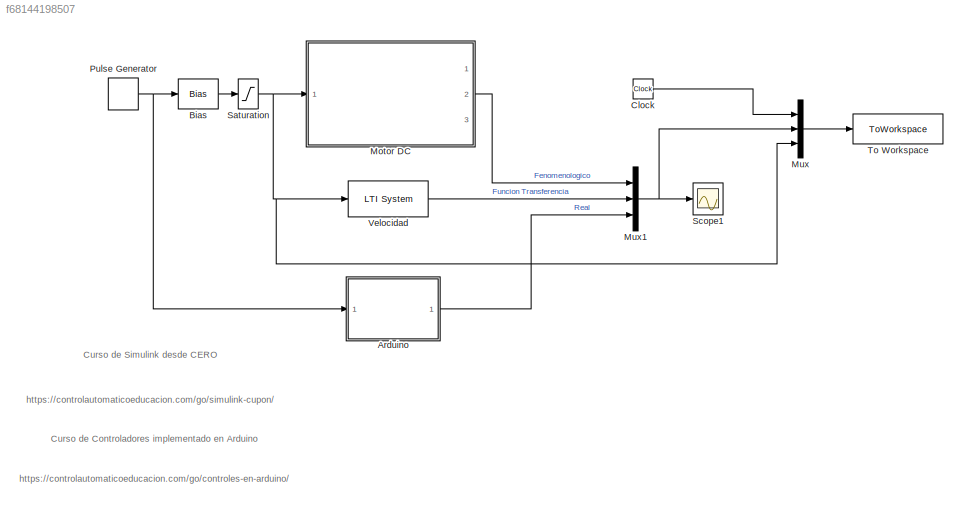
MODEL slx_f68144198507
KIND model
CONFIG AbsTol = auto
CONFIG EnableMultiTasking = off
CONFIG FixedStep = auto
CONFIG MaxStep = auto
CONFIG MinStep = auto
CONFIG RelTol = 1e-3
CONFIG SampleTimeConstraint = Unconstrained
CONFIG SolverName = VariableStepAuto
CONFIG StartTime = 0.0
CONFIG StopTime = 9
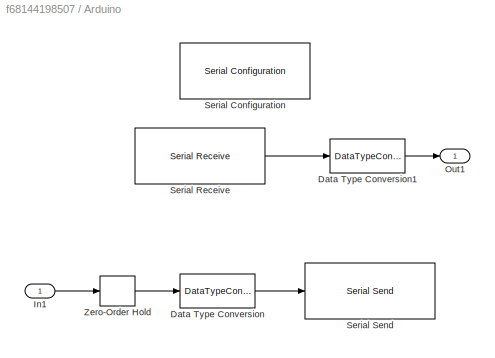
BLOCK [SubSystem] Arduino
  Ports = [1, 1]
  RequestExecContextInheritance = off
BLOCK [DataTypeConversion] Arduino/Data Type Conversion
  OutDataTypeStr = single
  RndMeth = Floor
  SaturateOnIntegerOverflow = off
BLOCK [DataTypeConversion] Arduino/Data Type Conversion1
  OutDataTypeStr = double
  RndMeth = Floor
  SaturateOnIntegerOverflow = off
BLOCK [Inport] Arduino/In1
BLOCK [Outport] Arduino/Out1
BLOCK [Reference] Arduino/Serial Configuration  REF=instrumentseriallib/Serial Configuration
  Ports = []
  Priority = -200000
  SourceBlock = instrumentseriallib/Serial Configuration
  SourceProductBaseCode = IC
  SourceType = matlabshared.seriallib.internal.system.SerialConfiguration
BLOCK [Reference] Arduino/Serial Receive  REF=instrumentseriallib/Serial Receive
  Ports = [0, 1]
  Priority = 1
  SourceBlock = instrumentseriallib/Serial Receive
  SourceProductBaseCode = IC
  SourceType = matlabshared.seriallib.internal.system.SerialReceive
BLOCK [Reference] Arduino/Serial Send  REF=instrumentseriallib/Serial Send
  Ports = [1]
  Priority = 1
  SourceBlock = instrumentseriallib/Serial Send
  SourceProductBaseCode = IC
  SourceType = matlabshared.seriallib.internal.system.SerialSend
BLOCK [ZeroOrderHold] Arduino/Zero-Order Hold
  SampleTime = 0.05
BLOCK [Bias] Bias
  Bias = -5+Vm
  SaturateOnIntegerOverflow = off
BLOCK [Clock] Clock
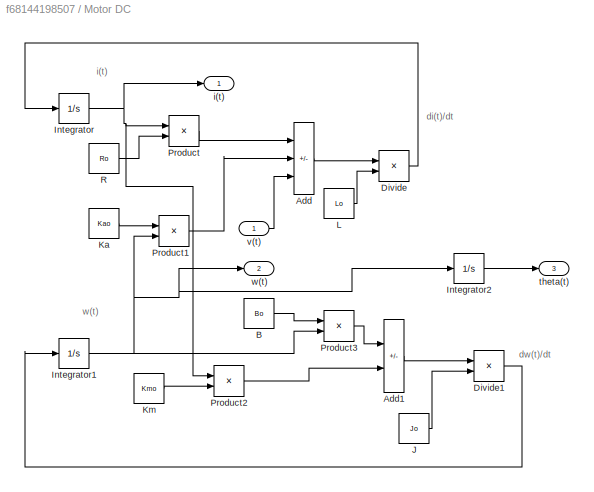
BLOCK [SubSystem] Motor DC
  Ports = [1, 3]
  RequestExecContextInheritance = off
BLOCK [Sum] Motor DC/Add
  IconShape = rectangular
  Inputs = --+
  Ports = [3, 1]
BLOCK [Sum] Motor DC/Add1
  IconShape = rectangular
  Inputs = -+
  Ports = [2, 1]
BLOCK [Constant] Motor DC/B
  Value = Bo
BLOCK [Product] Motor DC/Divide
  Inputs = */
  Ports = [2, 1]
BLOCK [Product] Motor DC/Divide1
  Inputs = */
  Ports = [2, 1]
BLOCK [Integrator] Motor DC/Integrator
  Ports = [1, 1]
BLOCK [Integrator] Motor DC/Integrator1
  Ports = [1, 1]
BLOCK [Integrator] Motor DC/Integrator2
  Ports = [1, 1]
BLOCK [Constant] Motor DC/J
  Value = Jo
BLOCK [Constant] Motor DC/Ka
  Value = Kao
BLOCK [Constant] Motor DC/Km
  Value = Kmo
BLOCK [Constant] Motor DC/L
  Value = Lo
BLOCK [Product] Motor DC/Product
  Ports = [2, 1]
BLOCK [Product] Motor DC/Product1
  Ports = [2, 1]
BLOCK [Product] Motor DC/Product2
  Ports = [2, 1]
BLOCK [Product] Motor DC/Product3
  Ports = [2, 1]
BLOCK [Constant] Motor DC/R
  Value = Ro
BLOCK [Outport] Motor DC/i(t)
  VectorParamsAs1DForOutWhenUnconnected = off
BLOCK [Outport] Motor DC/theta(t)
  Port = 3
  VectorParamsAs1DForOutWhenUnconnected = off
BLOCK [Inport] Motor DC/v(t)
BLOCK [Outport] Motor DC/w(t)
  Port = 2
  VectorParamsAs1DForOutWhenUnconnected = off
BLOCK [Mux] Mux
  DisplayOption = bar
  Inputs = 3
  Ports = [3, 1]
BLOCK [Mux] Mux1
  DisplayOption = bar
  Inputs = 3
  Ports = [3, 1]
BLOCK [DiscretePulseGenerator] Pulse Generator
  Amplitude = 5
  Period = 4
  PhaseDelay = 2
  Ports = [0, 1]
  PulseType = Time based
  PulseWidth = 50
BLOCK [Saturate] Saturation
  LowerLimit = 0
  UpperLimit = 5
BLOCK [Scope] Scope1
  Floating = off
  NumInputPorts = 1
  Ports = [1]
  ScopeSpecificationString = Simulink.scopes.TimeScopeBlockCfg('CurrentConfiguration', extmgr.ConfigurationSet(extmgr.Configuration('Core','General UI',true),extmgr.Configuration('Core','Source UI',true),extmgr.Configuration('Sources','WiredSimulink',true,'DataLoggingVariableName','ScopeData1'),extmgr.Configuration('Visuals','Time Domain',true,'SerializedDisplays',{struct('MinYLimReal','-1.80051','MaxYLimReal','16.20341','YLa...<+1822ch>
BLOCK [ToWorkspace] To Workspace
  FixptAsFi = on
  MaxDataPoints = inf
  Ports = [1]
  SampleTime = 0.05
  VariableName = data_val
BLOCK [Reference] Velocidad  REF=cstblocks/LTI System
  Ports = [1, 1]
  SourceBlock = cstblocks/LTI System
  SourceProductBaseCode = CT
  SourceType = LTI Block
ANNOTATION (root): https://controlautomaticoeducacion.com/go/controles-en-arduino/
ANNOTATION (root): https://controlautomaticoeducacion.com/go/simulink-cupon/
ANNOTATION (root): Curso de Controladores implementado en Arduino
ANNOTATION (root): Curso de Simulink desde CERO
ANNOTATION Motor DC: di(t)/dt
ANNOTATION Motor DC: dw(t)/dt
ANNOTATION Motor DC: i(t)
ANNOTATION Motor DC: w(t)
LINE Arduino/Data Type Conversion1:1 -> Arduino/Out1:1
LINE Arduino/Data Type Conversion:1 -> Arduino/Serial Send:1
LINE Arduino/In1:1 -> Arduino/Zero-Order Hold:1
LINE Arduino/Serial Receive:1 -> Arduino/Data Type Conversion1:1
LINE Arduino/Zero-Order Hold:1 -> Arduino/Data Type Conversion:1
LINE Arduino:1 -> Mux1:3
LINE Bias:1 -> Saturation:1
LINE Clock:1 -> Mux:1
LINE Motor DC/Add1:1 -> Motor DC/Divide1:1
LINE Motor DC/Add:1 -> Motor DC/Divide:1
LINE Motor DC/B:1 -> Motor DC/Product3:1
LINE Motor DC/Divide1:1 -> Motor DC/Integrator1:1
LINE Motor DC/Divide:1 -> Motor DC/Integrator:1
NET Motor DC/Integrator1:1 -> Motor DC/Integrator2:1, Motor DC/Product1:2, Motor DC/Product3:2, Motor DC/w(t):1
LINE Motor DC/Integrator2:1 -> Motor DC/theta(t):1
NET Motor DC/Integrator:1 -> Motor DC/Product2:1, Motor DC/Product:1, Motor DC/i(t):1
LINE Motor DC/J:1 -> Motor DC/Divide1:2
LINE Motor DC/Ka:1 -> Motor DC/Product1:1
LINE Motor DC/Km:1 -> Motor DC/Product2:2
LINE Motor DC/L:1 -> Motor DC/Divide:2
LINE Motor DC/Product1:1 -> Motor DC/Add:2
LINE Motor DC/Product2:1 -> Motor DC/Add1:2
LINE Motor DC/Product3:1 -> Motor DC/Add1:1
LINE Motor DC/Product:1 -> Motor DC/Add:1
LINE Motor DC/R:1 -> Motor DC/Product:2
LINE Motor DC/v(t):1 -> Motor DC/Add:3
LINE Motor DC:2 -> Mux1:1
NET Mux1:1 -> Mux:2, Scope1:1
LINE Mux:1 -> To Workspace:1
NET Pulse Generator:1 -> Arduino:1, Bias:1
NET Saturation:1 -> Motor DC:1, Mux:3, Velocidad:1
LINE Velocidad:1 -> Mux1:2
note: NET lines group one-source signal fan-out (src -> all destinations, sorted); 1:1 wires keep LINE
